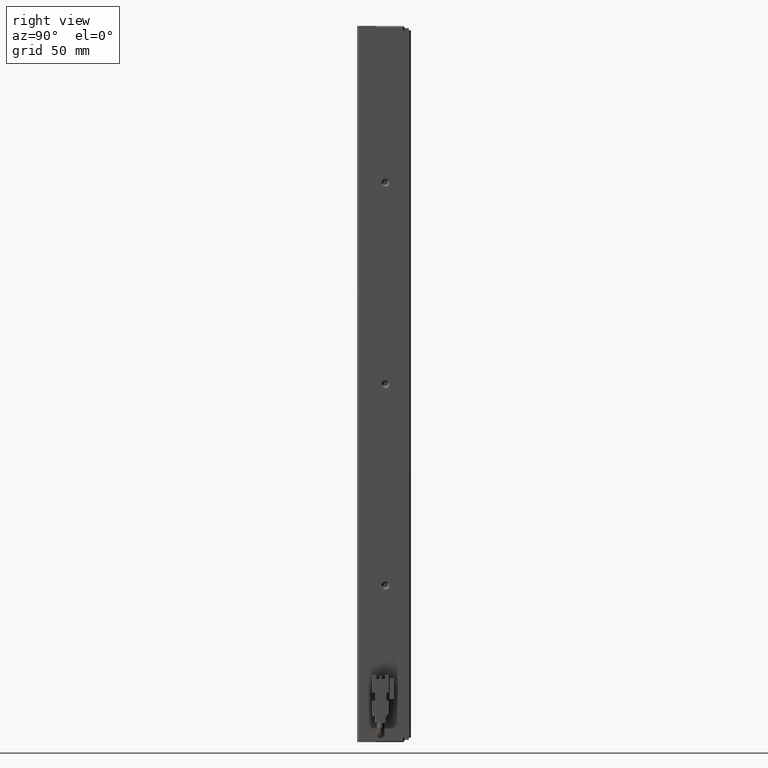
[diagram: clean part render]
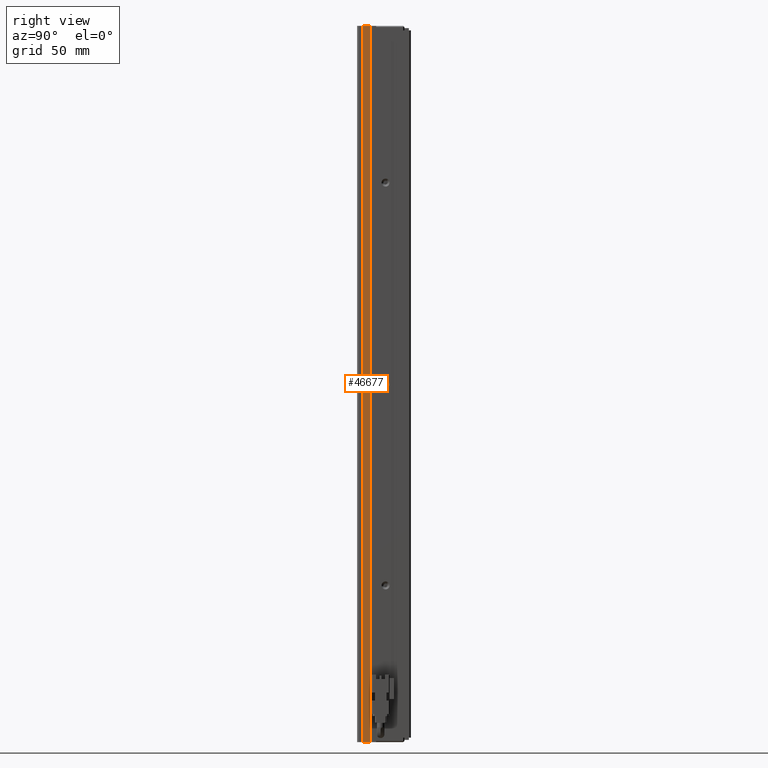
[diagram: same view with one face highlighted and labeled with its STEP entity id]
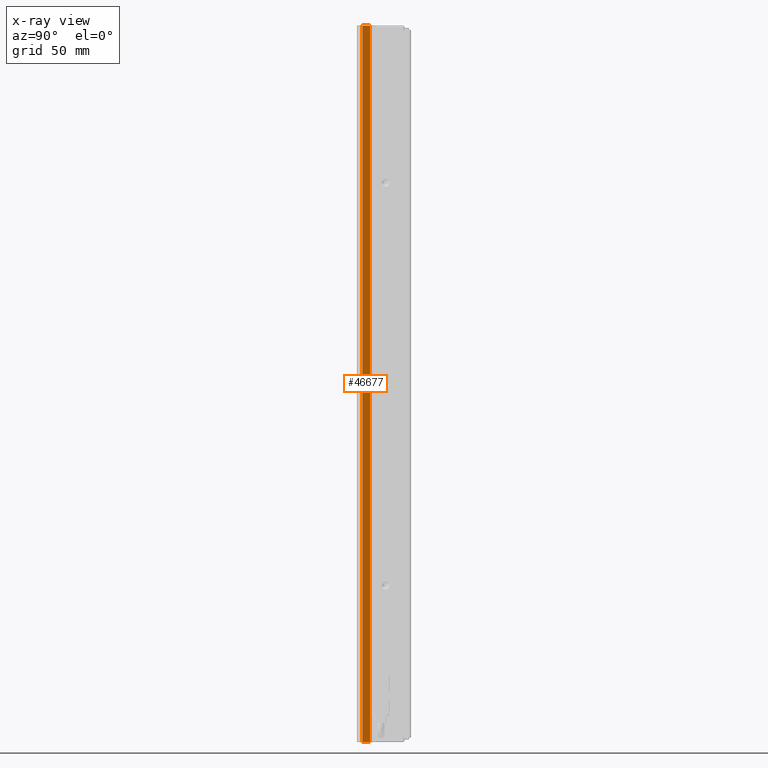
[diagram: x-ray of the same camera — body ghosted, the highlighted face saturated]
A machine part, right view. The second image highlights one B-rep face of the part: STEP entity #46677.
The next image is the same camera in x-ray: the body ghosted, the highlighted face saturated — about 0% of this face is hidden behind the body in this view.
In plain terms, the highlighted planar face has unit normal (1, 0, -0).
Its self-contained STEP definition (entity closure, byte-faithful):
#3891 = ORIENTED_EDGE ( 'NONE', *, *, #93462, .F. ) ;
#4794 = FACE_OUTER_BOUND ( 'NONE', #72994, .T. ) ;
#11624 = VERTEX_POINT ( 'NONE', #101525 ) ;
#11950 = CARTESIAN_POINT ( 'NONE',  ( 53.62537974683541400, 7.083797468354437600, 45.00000000000000000 ) ) ;
#17102 = CARTESIAN_POINT ( 'NONE',  ( 53.62537974683541400, 13.29073232304837200, -275.0000000000000000 ) ) ;
#18596 = ORIENTED_EDGE ( 'NONE', *, *, #104224, .T. ) ;
#20584 = EDGE_CURVE ( 'NONE', #11624, #97059, #87190, .T. ) ;
#20837 = ORIENTED_EDGE ( 'NONE', *, *, #20584, .T. ) ;
#21333 = ORIENTED_EDGE ( 'NONE', *, *, #98856, .T. ) ;
#21398 = CARTESIAN_POINT ( 'NONE',  ( 53.62537974683541400, 16.79073232304837000, 45.00000000000000000 ) ) ;
#27547 = CARTESIAN_POINT ( 'NONE',  ( 53.62537974683541400, 7.083797468354437600, -275.0000000000000000 ) ) ;
#35761 = CARTESIAN_POINT ( 'NONE',  ( 53.62537974683541400, 7.083797468354437600, 45.00000000000000000 ) ) ;
#40110 = VECTOR ( 'NONE', #64863, 1000.000000000000000 ) ;
#42122 = PLANE ( 'NONE',  #118231 ) ;
#46677 = ADVANCED_FACE ( 'NONE', ( #4794 ), #42122, .T. ) ;
#52431 = DIRECTION ( 'NONE',  ( -0.0000000000000000000, 0.0000000000000000000, -1.000000000000000000 ) ) ;
#59924 = VECTOR ( 'NONE', #79976, 1000.000000000000000 ) ;
#64863 = DIRECTION ( 'NONE',  ( 0.0000000000000000000, 1.000000000000000000, -0.0000000000000000000 ) ) ;
#72994 = EDGE_LOOP ( 'NONE', ( #3891, #18596, #21333, #20837 ) ) ;
#74740 = LINE ( 'NONE', #88566, #103704 ) ;
#77769 = DIRECTION ( 'NONE',  ( -0.0000000000000000000, 0.0000000000000000000, -1.000000000000000000 ) ) ;
#79976 = DIRECTION ( 'NONE',  ( 0.0000000000000000000, -0.0000000000000000000, 1.000000000000000000 ) ) ;
#81741 = VERTEX_POINT ( 'NONE', #17102 ) ;
#87190 = LINE ( 'NONE', #99676, #59924 ) ;
#88566 = CARTESIAN_POINT ( 'NONE',  ( 53.62537974683541400, 13.29073232304837200, 45.00000000000000000 ) ) ;
#93462 = EDGE_CURVE ( 'NONE', #117030, #97059, #125078, .T. ) ;
#97059 = VERTEX_POINT ( 'NONE', #21398 ) ;
#98206 = DIRECTION ( 'NONE',  ( 0.0000000000000000000, 1.000000000000000000, -0.0000000000000000000 ) ) ;
#98856 = EDGE_CURVE ( 'NONE', #81741, #11624, #105707, .T. ) ;
#99676 = CARTESIAN_POINT ( 'NONE',  ( 53.62537974683541400, 16.79073232304837000, 45.00000000000000000 ) ) ;
#101525 = CARTESIAN_POINT ( 'NONE',  ( 53.62537974683541400, 16.79073232304837000, -275.0000000000000000 ) ) ;
#103704 = VECTOR ( 'NONE', #77769, 1000.000000000000000 ) ;
#104224 = EDGE_CURVE ( 'NONE', #117030, #81741, #74740, .T. ) ;
#105707 = LINE ( 'NONE', #27547, #108912 ) ;
#108912 = VECTOR ( 'NONE', #98206, 1000.000000000000000 ) ;
#113867 = DIRECTION ( 'NONE',  ( 1.000000000000000000, 0.0000000000000000000, -0.0000000000000000000 ) ) ;
#117030 = VERTEX_POINT ( 'NONE', #119643 ) ;
#118231 = AXIS2_PLACEMENT_3D ( 'NONE', #11950, #113867, #52431 ) ;
#119643 = CARTESIAN_POINT ( 'NONE',  ( 53.62537974683541400, 13.29073232304837200, 45.00000000000000000 ) ) ;
#125078 = LINE ( 'NONE', #35761, #40110 ) ;